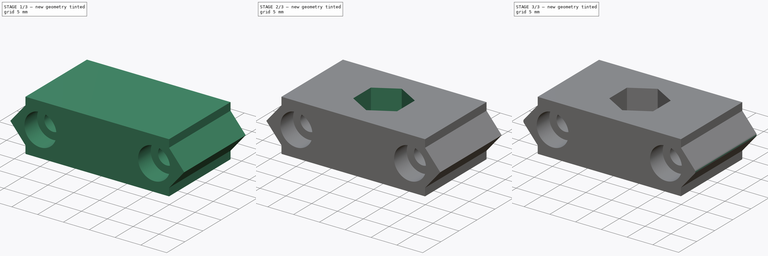
[diagram: build sequence overview — one tinted view per stage of 3, left to right]
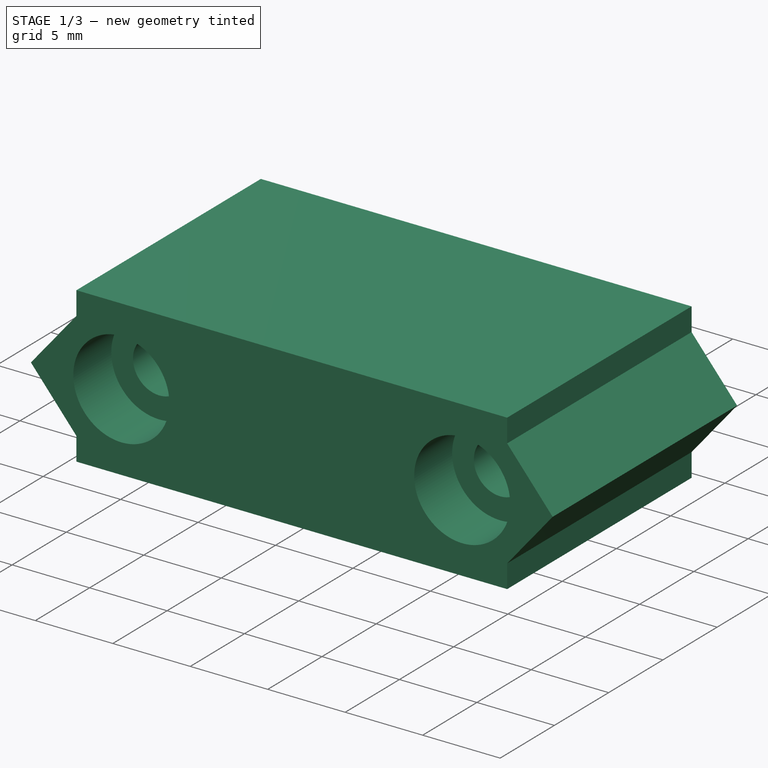
[diagram: stage 1 of 3 — iso view after this stage's code; geometry added in this stage tinted green]
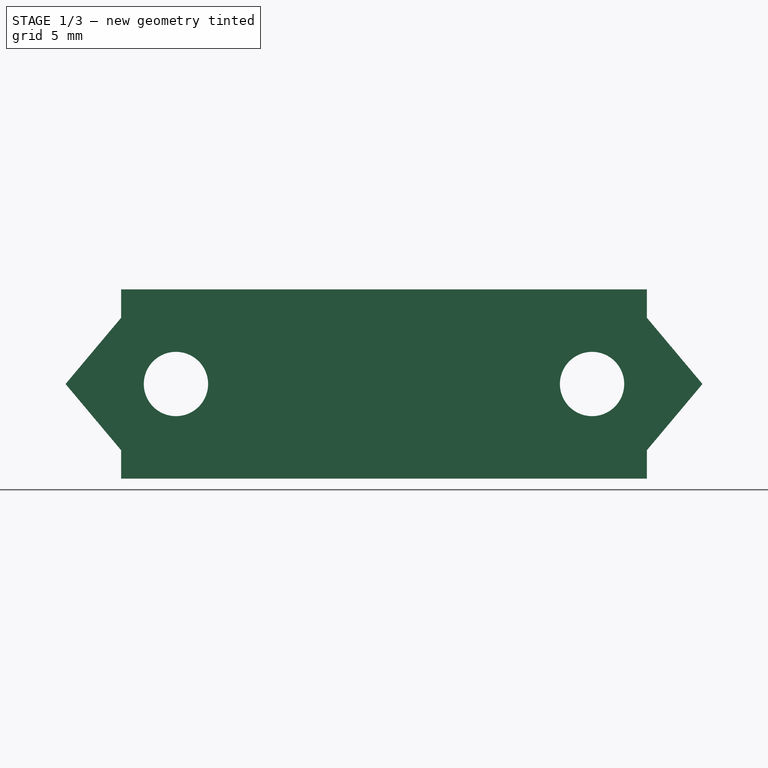
[diagram: stage 1 of 3 — front view after this stage's code; geometry added in this stage tinted green]
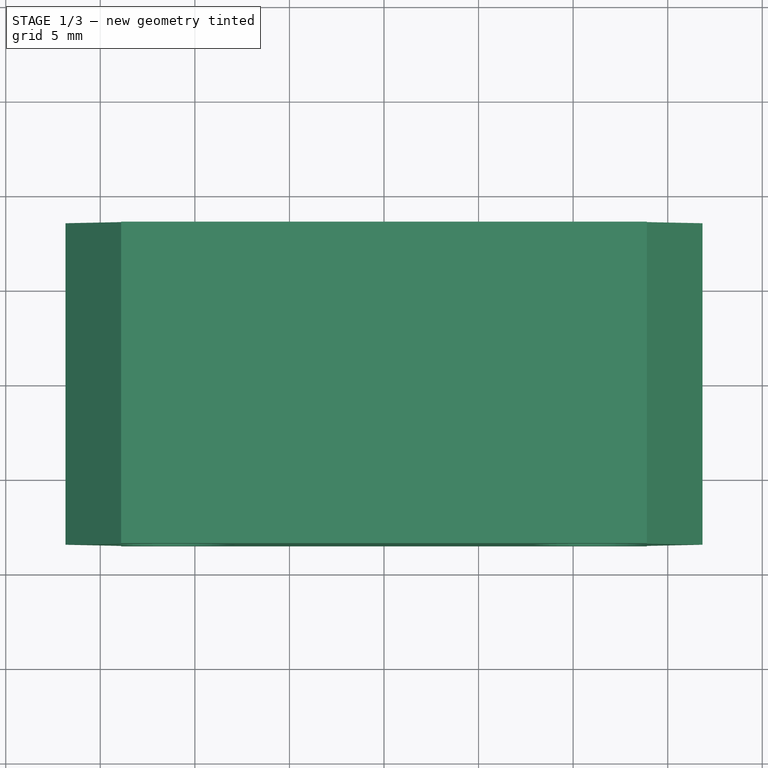
[diagram: stage 1 of 3 — top view after this stage's code; geometry added in this stage tinted green]
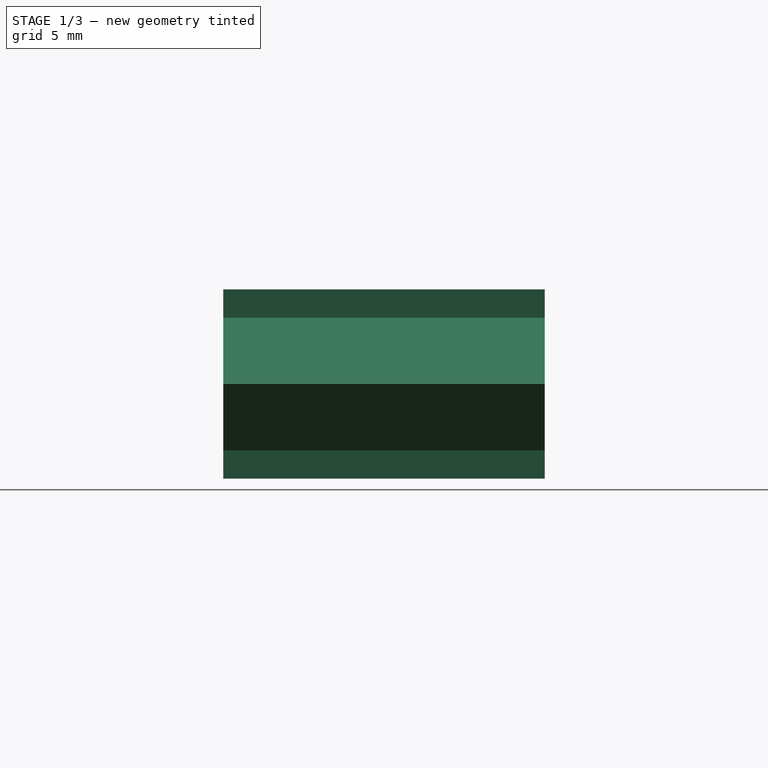
[diagram: stage 1 of 3 — right view after this stage's code; geometry added in this stage tinted green]
FCSTD DOCUMENT  (FreeCAD 0.18R14995 (Git))
Label: XCarriageBottomWheel
License: All rights reserved
LicenseURL: http://en.wikipedia.org/wiki/All_rights_reserved
objects: Sketcher::SketchObject×4, PartDesign::Pocket×3, PartDesign::Pad×1, PartDesign::Plane×1, PartDesign::Fillet×1, PartDesign::Body×1, App::Part×1
note: 15 computed .brp shape members not serialized (recipe doc carries the construction recipe); baked Part::Feature solids carry a one-line shape summary decoded from their .brp

FEATURE [Sketcher::SketchObject] Sketch  label="BaseSketch"
  MapMode = 5
  Placement = pos=(0,0,0) rot=(1,0,0;1.5708rad)
  Support = -> [XZ_Plane003]
  sketch-geometry (12):
    g0: LineSegment StartX=-13.9 StartY=5 StartZ=0 EndX=13.9 EndY=5 EndZ=0
    g1: LineSegment StartX=-13.9 StartY=5 StartZ=0 EndX=-13.9 EndY=3.5 EndZ=0
    g2: LineSegment StartX=-13.9 StartY=3.5 StartZ=0 EndX=-16.8368 EndY=0 EndZ=0
    g3: LineSegment StartX=-16.8368 StartY=0 StartZ=0 EndX=-13.9 EndY=-3.5 EndZ=0
    g4: LineSegment StartX=-13.9 StartY=-3.5 StartZ=0 EndX=-13.9 EndY=-5 EndZ=0
    g5: LineSegment StartX=-13.9 StartY=-5 StartZ=0 EndX=13.9 EndY=-5 EndZ=0
    g6: LineSegment StartX=13.9 StartY=-5 StartZ=0 EndX=13.9 EndY=-3.5 EndZ=0
    g7: LineSegment StartX=13.9 StartY=-3.5 StartZ=0 EndX=16.8368 EndY=0 EndZ=0
    g8: LineSegment StartX=16.8368 StartY=0 StartZ=0 EndX=13.9 EndY=3.5 EndZ=0
    g9: LineSegment StartX=13.9 StartY=3.5 StartZ=0 EndX=13.9 EndY=5 EndZ=0
    g10: Circle CenterX=-11 CenterY=0 CenterZ=0 NormalX=0 NormalY=0 NormalZ=1 AngleXU=0 Radius=1.7
    g11: Circle CenterX=11 CenterY=0 CenterZ=0 NormalX=0 NormalY=0 NormalZ=1 AngleXU=0 Radius=1.7
  constraints (32):
    c: Coincident(g1,g0)
    c: Vertical(g1)
    c: Coincident(g2,g1)
    c: Coincident(g3,g2)
    c: Coincident(g4,g3)
    c: Vertical(g4)
    c: Coincident(g5,g4)
    c: Horizontal(g5)
    c: Coincident(g6,g5)
    c: Vertical(g6)
    c: Coincident(g7,g6)
    c: Coincident(g8,g7)
    c: Coincident(g9,g8)
    c: Coincident(g9,g0)
    c: Vertical(g9)
    c: Symmetric(g0,g5,g-1)
    c: Equal(g9,g6)
    c: Equal(g6,g4)
    c: Equal(g4,g1)
    c: Symmetric(g0,g0,g-2)
    c: Symmetric(g7,g2,g-2)
    c: PointOnObject(g7,g-1)
    c: Distance(g0,g4) = 10
    c: Distance(g0) = 27.8
    c: Distance(g9) = 1.5
    c: Equal(g5,g0)
    c: Angle(g6,g7) = 2.44346
    c: PointOnObject(g10,g-1)
    c: Symmetric(g11,g10,g-2)
    c: Equal(g10,g11)
    c: Radius(g10) = 1.7
    c: Distance(g10,g11) = 22
FEATURE [PartDesign::Pad] Pad  label="BasePad"
  Length = 17
  Length2 = 100
  Midplane = true
  Placement = pos=(0,0,0) rot=(1,0,0;1.5708rad)
  Profile = -> Sketch
  Type = 0
FEATURE [PartDesign::Plane] DatumPlane  label="ScrewHeadsPlane"
  AttachmentOffset = pos=(0,0,8.5) rot=(0,0,1;0rad)
  Length = 38.535
  MapMode = 5
  Placement = pos=(0,-8.5,-1e-12) rot=(1,0,0;1.5708rad)
  ResizeMode = 0
  Support = -> [XZ_Plane003]
  Width = 25.1667
FEATURE [Sketcher::SketchObject] Sketch002  label="ScrewHeadsSketch"
  ExternalGeometry = -> [Sketch]
  MapMode = 5
  Placement = pos=(0,-8.5,-1e-12) rot=(1,0,0;1.5708rad)
  Support = -> [DatumPlane]
  sketch-geometry (2):
    g0: Circle CenterX=-11 CenterY=0 CenterZ=0 NormalX=0 NormalY=0 NormalZ=1 AngleXU=0 Radius=3.1
    g1: Circle CenterX=11 CenterY=0 CenterZ=0 NormalX=0 NormalY=0 NormalZ=1 AngleXU=0 Radius=3.1
  constraints (4):
    c: Coincident(g0,g-3)
    c: Coincident(g1,g-4)
    c: Equal(g0,g1)
    c: Radius(g0) = 3.1
FEATURE [PartDesign::Pocket] Pocket  label="ScrewHeadsPocket"
  BaseFeature = -> Pad
  Length = 3.5
  Length2 = 100
  Placement = pos=(0,0,0) rot=(1,0,0;1.5708rad)
  Profile = -> Sketch002
  Type = 0
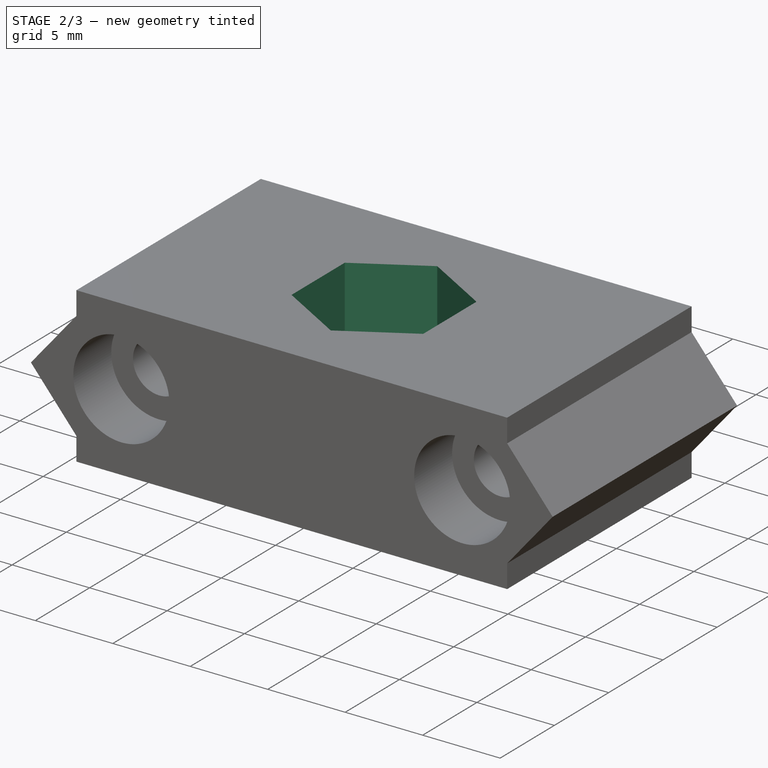
[diagram: stage 2 of 3 — iso view after this stage's code; geometry added in this stage tinted green]
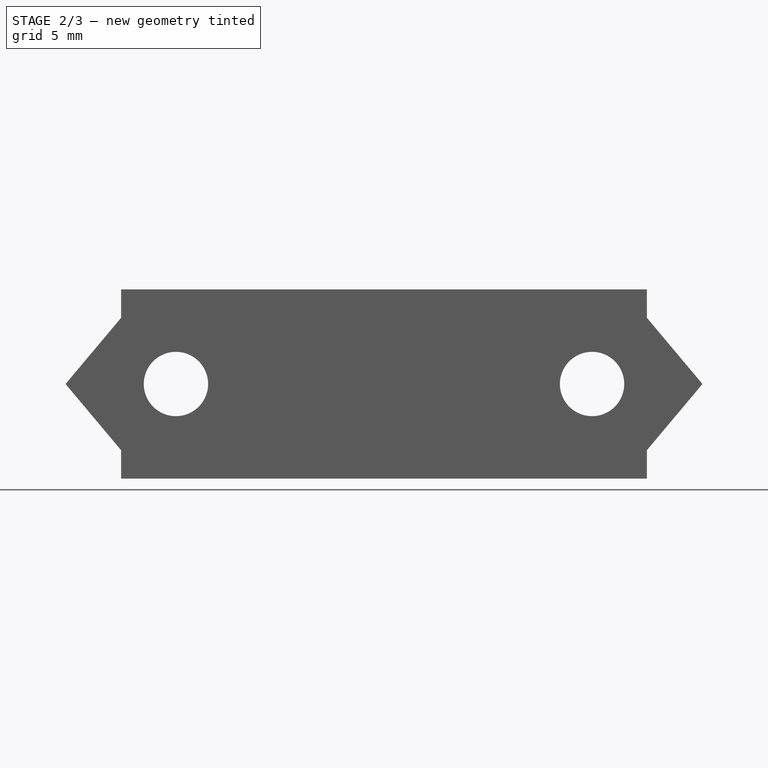
[diagram: stage 2 of 3 — front view after this stage's code; geometry added in this stage tinted green]
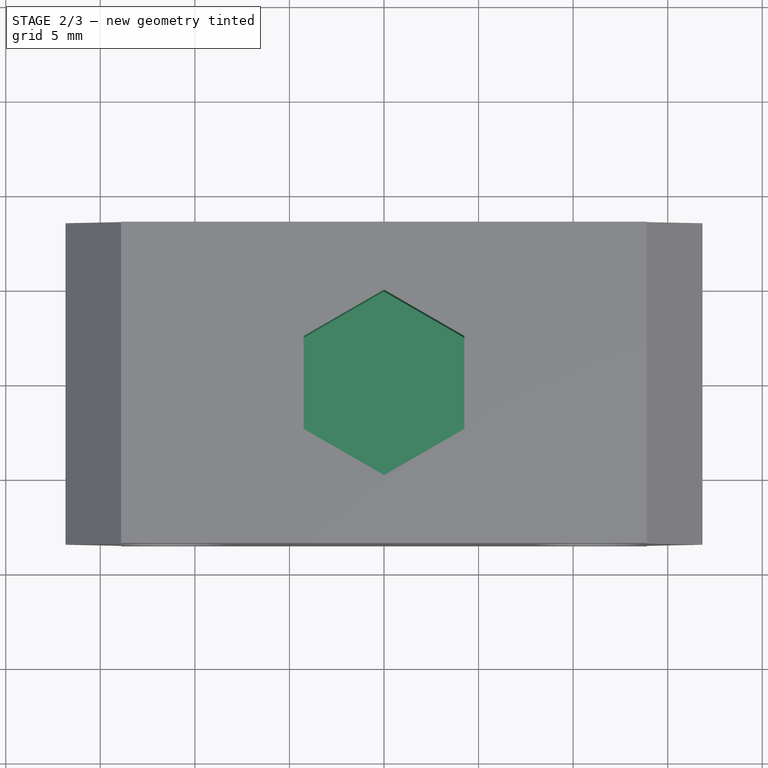
[diagram: stage 2 of 3 — top view after this stage's code; geometry added in this stage tinted green]
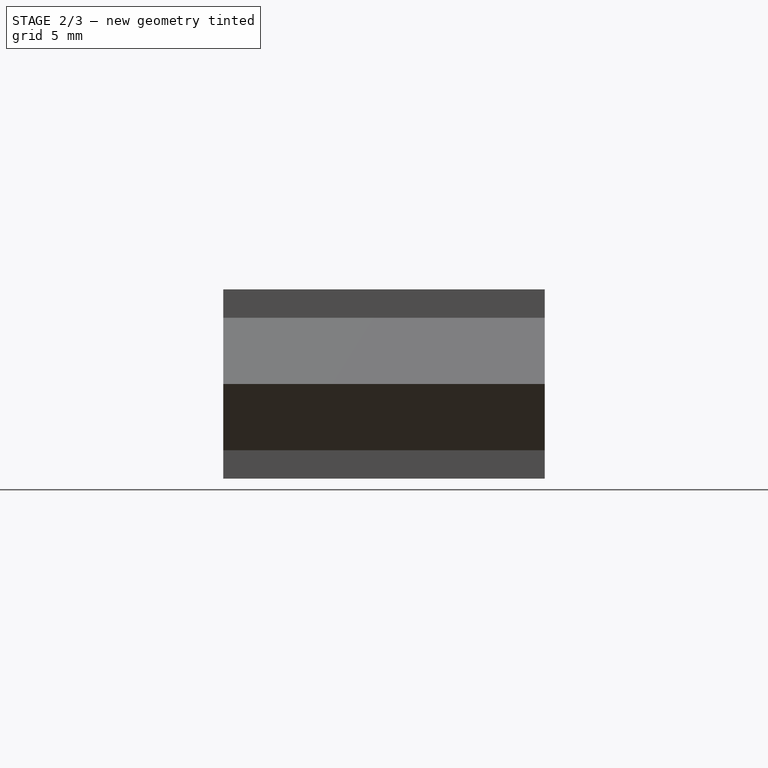
[diagram: stage 2 of 3 — right view after this stage's code; geometry added in this stage tinted green]
FEATURE [Sketcher::SketchObject] Sketch003  label="NutSketch"
  MapMode = 5
  Support = -> [XY_Plane003]
  sketch-geometry (7):
    g0: LineSegment StartX=4.25 StartY=-2.45374 StartZ=0 EndX=4.25 EndY=2.45374 EndZ=0
    g1: LineSegment StartX=4.25 StartY=2.45374 StartZ=0 EndX=0 EndY=4.90748 EndZ=0
    g2: LineSegment StartX=0 StartY=4.90748 StartZ=0 EndX=-4.25 EndY=2.45374 EndZ=0
    g3: LineSegment StartX=-4.25 StartY=2.45374 StartZ=0 EndX=-4.25 EndY=-2.45374 EndZ=0
    g4: LineSegment StartX=-4.25 StartY=-2.45374 StartZ=0 EndX=0 EndY=-4.90748 EndZ=0
    g5: LineSegment StartX=0 StartY=-4.90748 StartZ=0 EndX=4.25 EndY=-2.45374 EndZ=0
    g6: Circle [constr] CenterX=0 CenterY=0 CenterZ=0 NormalX=0 NormalY=0 NormalZ=1 AngleXU=0 Radius=4.90748
  constraints (16):
    c: Coincident(g0,g1)
    c: Coincident(g1,g2)
    c: Coincident(g2,g3)
    c: Coincident(g3,g4)
    c: Coincident(g4,g5)
    c: Coincident(g5,g0)
    c: Equal(g0, g1-g5) x5
    c: PointOnObject(g0,g6)
    c: PointOnObject(g1,g6)
    c: PointOnObject(g2,g6)
    c: PointOnObject(g3,g6)
    c: PointOnObject(g4,g6)
    c: PointOnObject(g5,g6)
    c: Coincident(g6,g-1)
    c: Vertical(g0)
    c: Distance(g2,g0) = 8.5
FEATURE [PartDesign::Pocket] Pocket001  label="NutPocket"
  BaseFeature = -> Pocket
  Length = 1
  Length2 = 5
  Placement = pos=(0,0,0) rot=(1,0,0;1.5708rad)
  Profile = -> Sketch003
  Type = 4
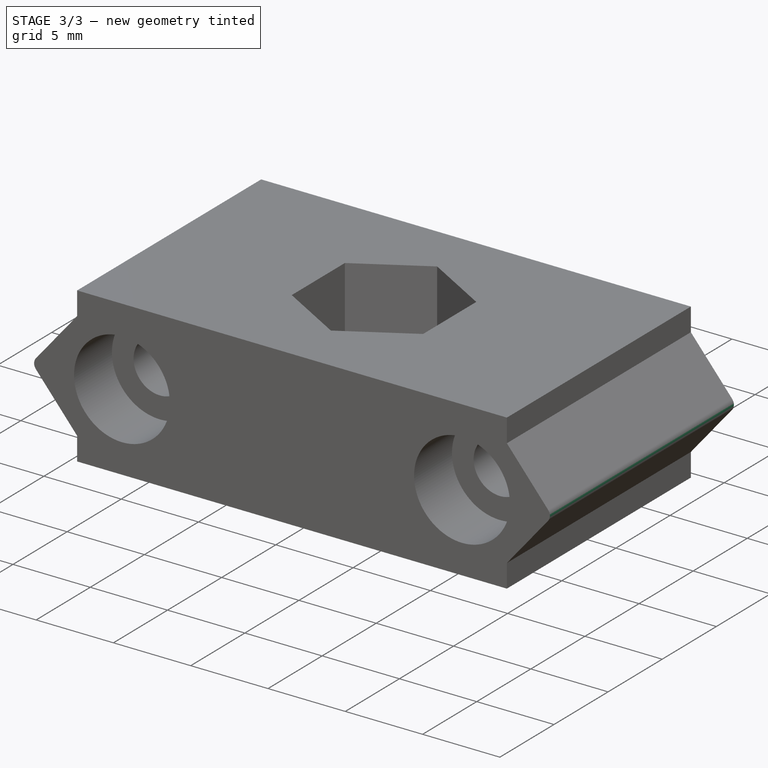
[diagram: stage 3 of 3 — iso view after this stage's code; geometry added in this stage tinted green]
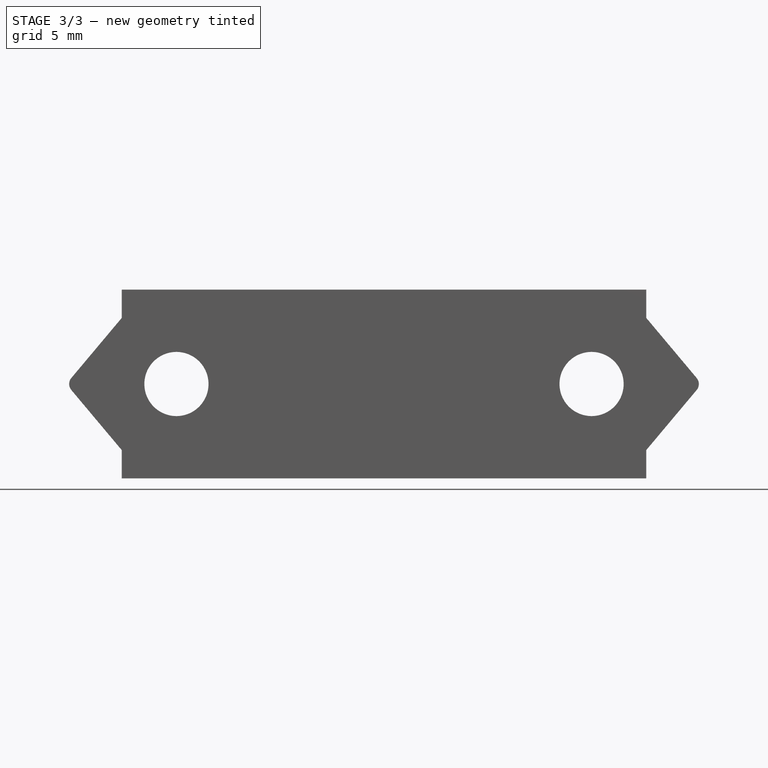
[diagram: stage 3 of 3 — front view after this stage's code; geometry added in this stage tinted green]
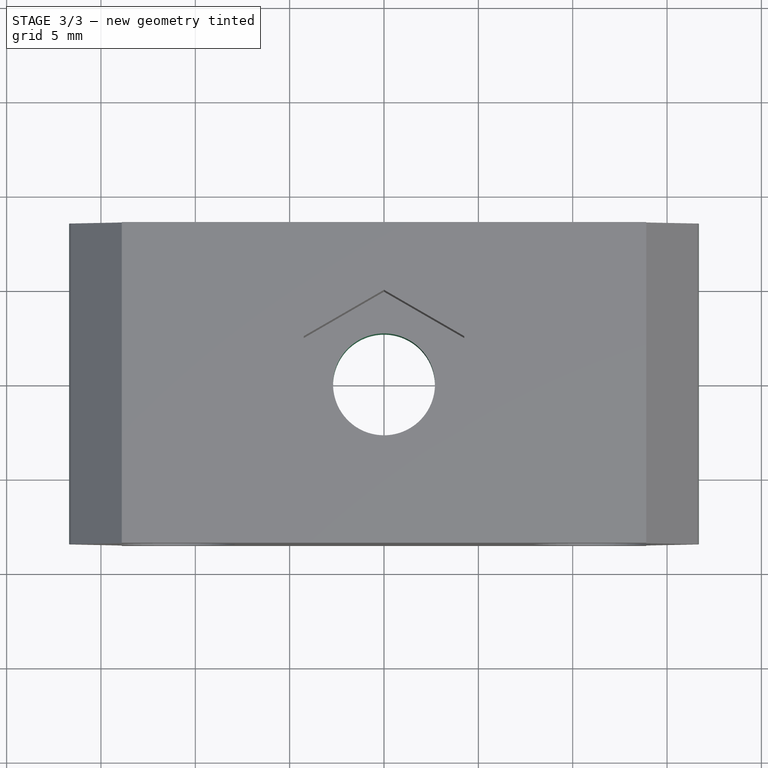
[diagram: stage 3 of 3 — top view after this stage's code; geometry added in this stage tinted green]
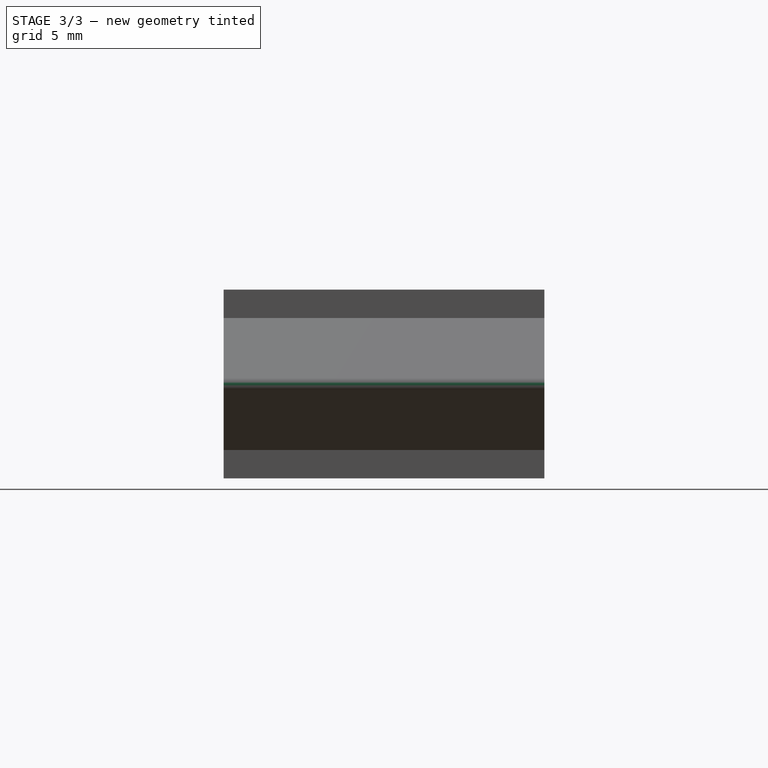
[diagram: stage 3 of 3 — right view after this stage's code; geometry added in this stage tinted green]
FEATURE [Sketcher::SketchObject] Sketch004  label="WheelScrewSketch"
  MapMode = 5
  Support = -> [XY_Plane003]
  sketch-geometry (1):
    g0: Circle CenterX=0 CenterY=0 CenterZ=0 NormalX=0 NormalY=0 NormalZ=1 AngleXU=0 Radius=2.7
  constraints (2):
    c: Coincident(g0,g-1)
    c: Radius(g0) = 2.7
FEATURE [PartDesign::Pocket] Pocket002  label="WheelScrewPocket"
  BaseFeature = -> Pocket001
  Length = 5
  Length2 = 100
  Placement = pos=(0,0,0) rot=(1,0,0;1.5708rad)
  Profile = -> Sketch004
  Type = 1
FEATURE [PartDesign::Fillet] Fillet  label="CornersFillet"
  Base = -> Pocket002 [Edge48,Edge47]
  BaseFeature = -> Pocket002
  Placement = pos=(0,0,0) rot=(1,0,0;1.5708rad)
  Radius = 0.5
FEATURE [PartDesign::Body] Body  label="BaseBody"
  Group = -> [Sketch,Pad,DatumPlane,Sketch002,Pocket,Sketch003,Pocket001,Sketch004,Pocket002,Fillet]
  Origin = -> Origin003
  Tip = -> Fillet
FEATURE [App::Part] Part  label="BottomWheelPart"
  Group = -> [Body]
  License = CC BY 3.0
  LicenseURL = http://creativecommons.org/licenses/by/3.0/
  Origin = -> Origin
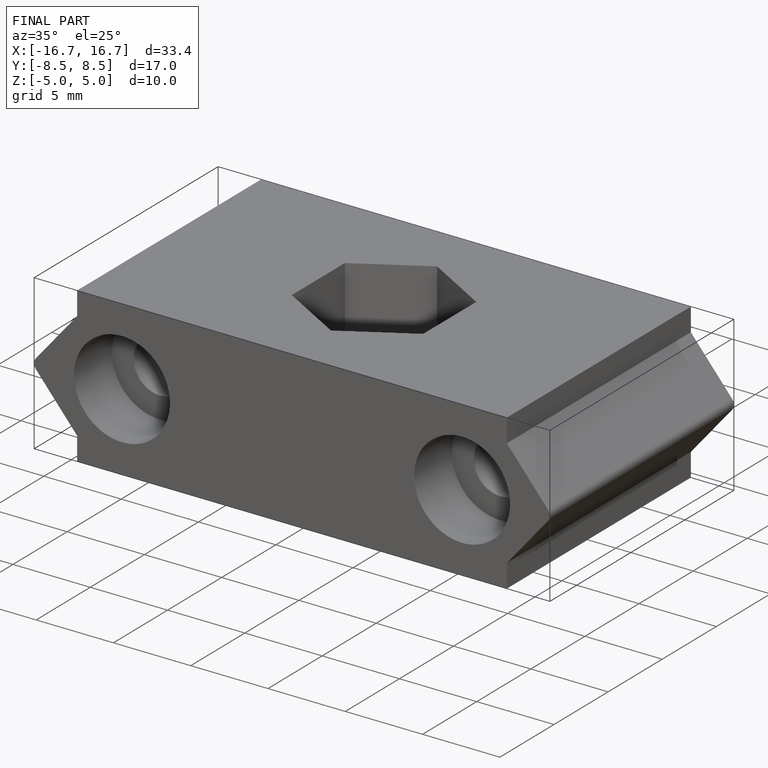
[diagram: finished part — iso view with bounding-box wireframe]
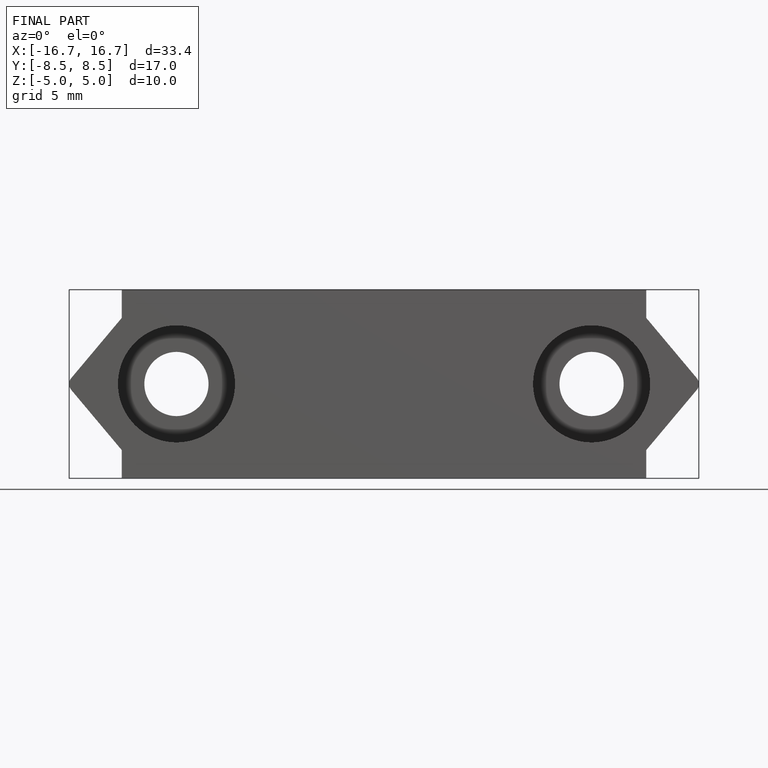
[diagram: finished part — front view with bounding-box wireframe]
